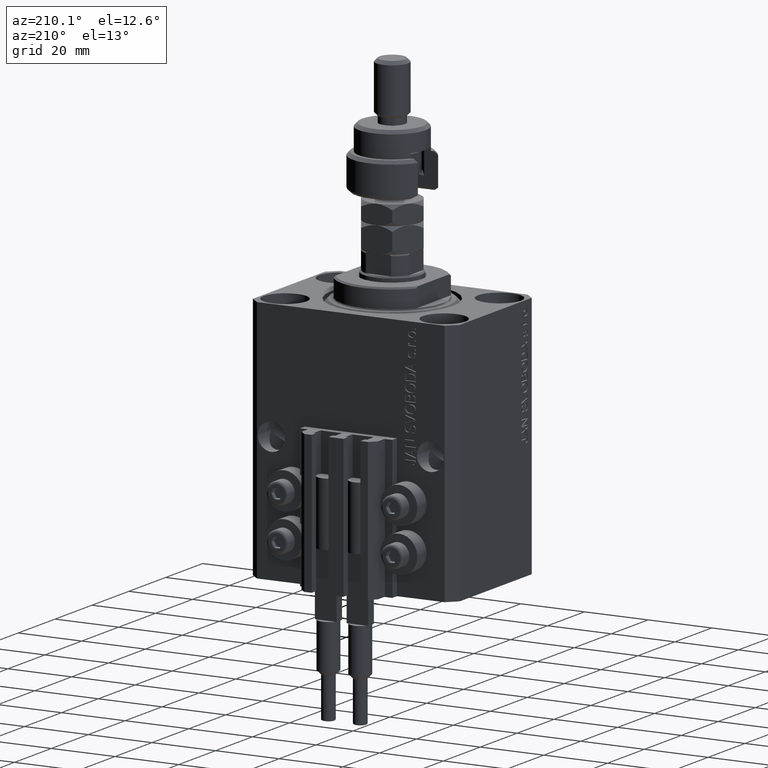
[diagram: clean part render]
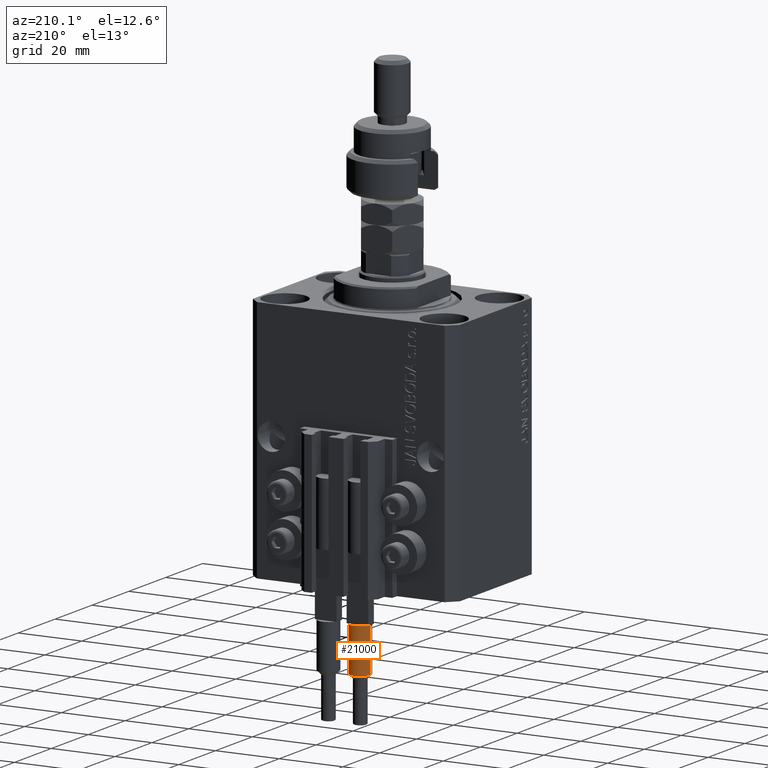
[diagram: same view with one face highlighted and labeled with its STEP entity id]
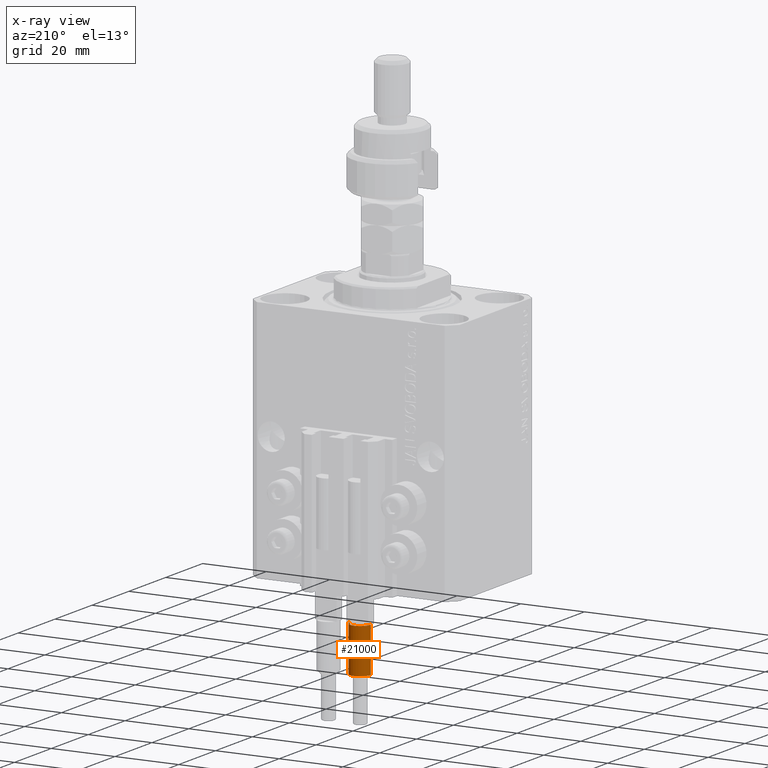
[diagram: x-ray of the same camera — body ghosted, the highlighted face saturated]
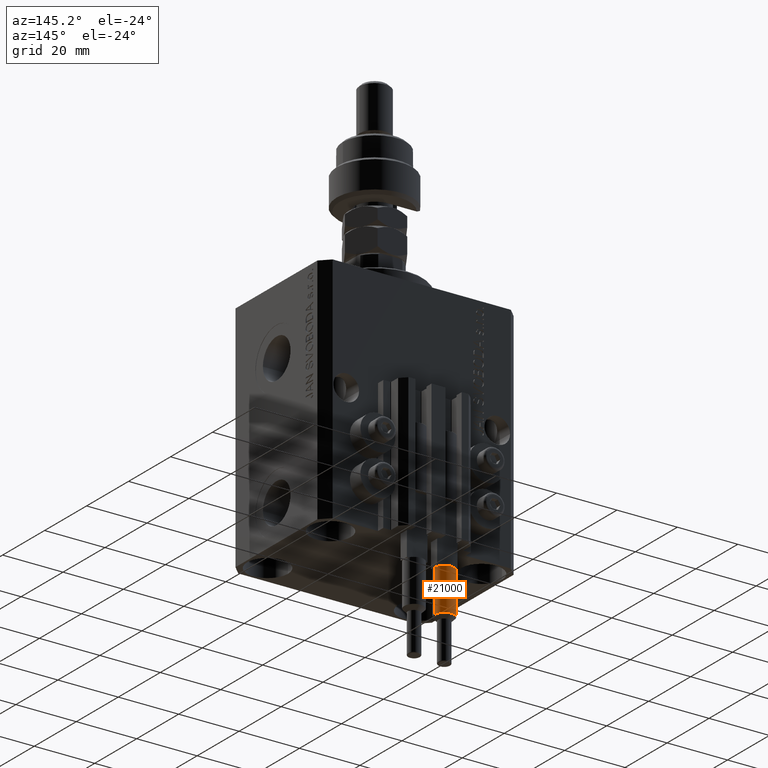
[diagram: same view with one face highlighted and labeled with its STEP entity id]
A machine part, auxiliary view. The second image highlights one B-rep face of the part: STEP entity #21000.
The next image is the same camera in x-ray: the body ghosted, the highlighted face saturated — about 0% of this face is hidden behind the body in this view.
A second angle (auxiliary view) of the same face is appended — the face is thin or edge-on in the first view.
In plain terms, the highlighted cylindrical surface (edge-blend (fillet) strip) has radius 3.25 mm, axis along (0, 0, 1).
Its self-contained STEP definition (entity closure, byte-faithful):
#758 = AXIS2_PLACEMENT_3D ( 'NONE', #23471, #30916, #3677 ) ;
#2500 = ORIENTED_EDGE ( 'NONE', *, *, #45051, .T. ) ;
#3224 = VERTEX_POINT ( 'NONE', #27913 ) ;
#3677 = DIRECTION ( 'NONE',  ( 1.000000000000000000, 0.000000000000000000, 0.000000000000000000 ) ) ;
#4512 = EDGE_LOOP ( 'NONE', ( #44803, #18449, #5740, #29127, #2500, #7234 ) ) ;
#5387 = AXIS2_PLACEMENT_3D ( 'NONE', #44672, #5854, #48274 ) ;
#5689 = CARTESIAN_POINT ( 'NONE',  ( 0.000000000000000000, 0.000000000000000000, 56.00000000000000000 ) ) ;
#5740 = ORIENTED_EDGE ( 'NONE', *, *, #20811, .T. ) ;
#5831 = LINE ( 'NONE', #29726, #18860 ) ;
#5854 = DIRECTION ( 'NONE',  ( 0.000000000000000000, 0.000000000000000000, -1.000000000000000000 ) ) ;
#5977 = EDGE_CURVE ( 'NONE', #30978, #14534, #39018, .T. ) ;
#6185 = DIRECTION ( 'NONE',  ( -1.000000000000000000, 0.000000000000000000, 0.000000000000000000 ) ) ;
#7234 = ORIENTED_EDGE ( 'NONE', *, *, #43083, .F. ) ;
#8623 = CARTESIAN_POINT ( 'NONE',  ( 3.250000000000000444, 3.980102097228898231E-16, 40.00000000000000000 ) ) ;
#9542 = CARTESIAN_POINT ( 'NONE',  ( -3.250000000000000444, 0.000000000000000000, 53.99999999999998579 ) ) ;
#11242 = VERTEX_POINT ( 'NONE', #8623 ) ;
#13165 = DIRECTION ( 'NONE',  ( -0.000000000000000000, -0.000000000000000000, -1.000000000000000000 ) ) ;
#13665 = LINE ( 'NONE', #48369, #47027 ) ;
#14534 = VERTEX_POINT ( 'NONE', #24434 ) ;
#17698 = DIRECTION ( 'NONE',  ( 0.000000000000000000, 0.000000000000000000, 1.000000000000000000 ) ) ;
#18042 = DIRECTION ( 'NONE',  ( 0.000000000000000000, 0.000000000000000000, 1.000000000000000000 ) ) ;
#18449 = ORIENTED_EDGE ( 'NONE', *, *, #33390, .T. ) ;
#18860 = VECTOR ( 'NONE', #21768, 1000.000000000000000 ) ;
#20811 = EDGE_CURVE ( 'NONE', #11242, #29504, #31963, .T. ) ;
#20826 = CIRCLE ( 'NONE', #27386, 3.250000000000000444 ) ;
#21000 = ADVANCED_FACE ( 'NONE', ( #41403 ), #49361, .T. ) ;
#21768 = DIRECTION ( 'NONE',  ( -0.000000000000000000, -0.000000000000000000, -1.000000000000000000 ) ) ;
#23471 = CARTESIAN_POINT ( 'NONE',  ( 0.000000000000000000, 0.000000000000000000, 40.00000000000000000 ) ) ;
#24434 = CARTESIAN_POINT ( 'NONE',  ( 3.250000000000000444, 3.980102097228898231E-16, 53.99999999999998579 ) ) ;
#24984 = DIRECTION ( 'NONE',  ( -0.000000000000000000, -0.000000000000000000, -1.000000000000000000 ) ) ;
#25002 = CARTESIAN_POINT ( 'NONE',  ( 0.000000000000000000, 0.000000000000000000, 40.00000000000000000 ) ) ;
#27386 = AXIS2_PLACEMENT_3D ( 'NONE', #25002, #18042, #37558 ) ;
#27800 = CIRCLE ( 'NONE', #34357, 3.250000000000000444 ) ;
#27913 = CARTESIAN_POINT ( 'NONE',  ( -3.250000000000000444, 0.000000000000000000, 40.00000000000000000 ) ) ;
#29127 = ORIENTED_EDGE ( 'NONE', *, *, #31423, .T. ) ;
#29469 = AXIS2_PLACEMENT_3D ( 'NONE', #5689, #24984, #6185 ) ;
#29504 = VERTEX_POINT ( 'NONE', #50226 ) ;
#29726 = CARTESIAN_POINT ( 'NONE',  ( 3.250000000000000444, 3.980102097228898231E-16, 56.00000000000000000 ) ) ;
#29773 = DIRECTION ( 'NONE',  ( 1.000000000000000000, 0.000000000000000000, 0.000000000000000000 ) ) ;
#30916 = DIRECTION ( 'NONE',  ( 0.000000000000000000, 0.000000000000000000, 1.000000000000000000 ) ) ;
#30978 = VERTEX_POINT ( 'NONE', #9542 ) ;
#31423 = EDGE_CURVE ( 'NONE', #29504, #39715, #27800, .T. ) ;
#31963 = CIRCLE ( 'NONE', #758, 3.250000000000000444 ) ;
#33390 = EDGE_CURVE ( 'NONE', #14534, #11242, #5831, .T. ) ;
#34357 = AXIS2_PLACEMENT_3D ( 'NONE', #41094, #17698, #29773 ) ;
#36514 = CARTESIAN_POINT ( 'NONE',  ( -2.883140648667699146, 1.500000000000000000, 40.00000000000000000 ) ) ;
#37558 = DIRECTION ( 'NONE',  ( 1.000000000000000000, 0.000000000000000000, 0.000000000000000000 ) ) ;
#39018 = CIRCLE ( 'NONE', #5387, 3.250000000000000444 ) ;
#39715 = VERTEX_POINT ( 'NONE', #36514 ) ;
#41094 = CARTESIAN_POINT ( 'NONE',  ( 0.000000000000000000, 0.000000000000000000, 40.00000000000000000 ) ) ;
#41403 = FACE_OUTER_BOUND ( 'NONE', #4512, .T. ) ;
#43083 = EDGE_CURVE ( 'NONE', #30978, #3224, #13665, .T. ) ;
#44672 = CARTESIAN_POINT ( 'NONE',  ( 0.000000000000000000, 0.000000000000000000, 53.99999999999998579 ) ) ;
#44803 = ORIENTED_EDGE ( 'NONE', *, *, #5977, .T. ) ;
#45051 = EDGE_CURVE ( 'NONE', #39715, #3224, #20826, .T. ) ;
#47027 = VECTOR ( 'NONE', #13165, 1000.000000000000000 ) ;
#48274 = DIRECTION ( 'NONE',  ( 1.000000000000000000, 0.000000000000000000, 0.000000000000000000 ) ) ;
#48369 = CARTESIAN_POINT ( 'NONE',  ( -3.250000000000000444, 0.000000000000000000, 56.00000000000000000 ) ) ;
#49361 = CYLINDRICAL_SURFACE ( 'NONE', #29469, 3.250000000000000444 ) ;
#50226 = CARTESIAN_POINT ( 'NONE',  ( 2.883140648667699146, 1.500000000000000000, 40.00000000000000000 ) ) ;